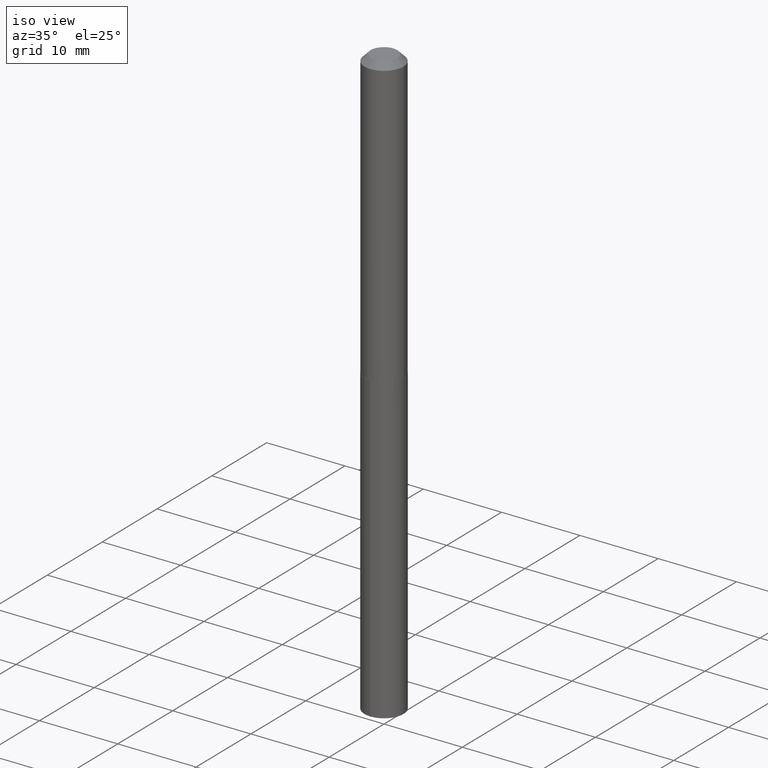
[diagram: clean part render]
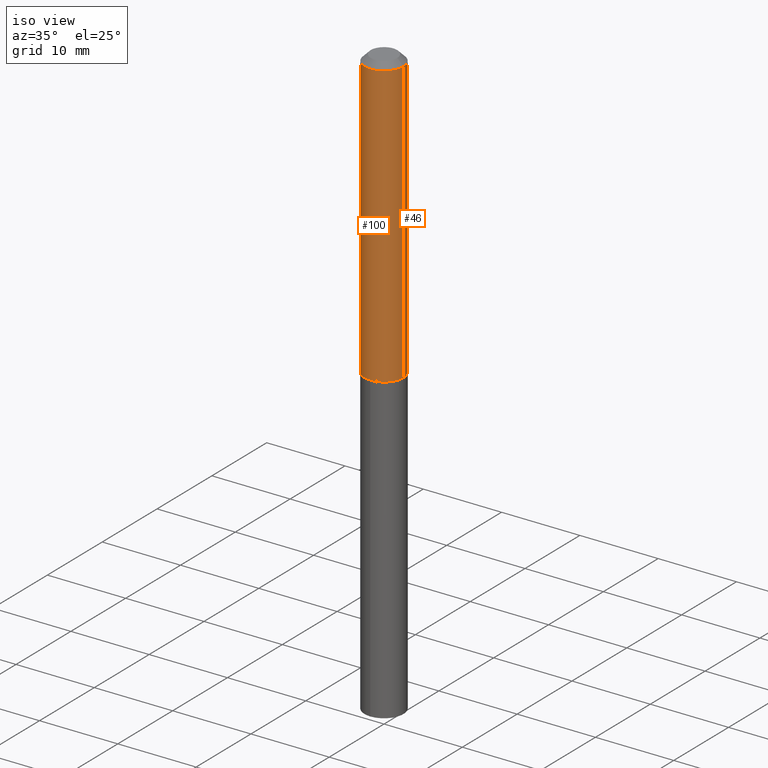
[diagram: same view with one multi-face feature highlighted, each face labeled with its STEP entity id]
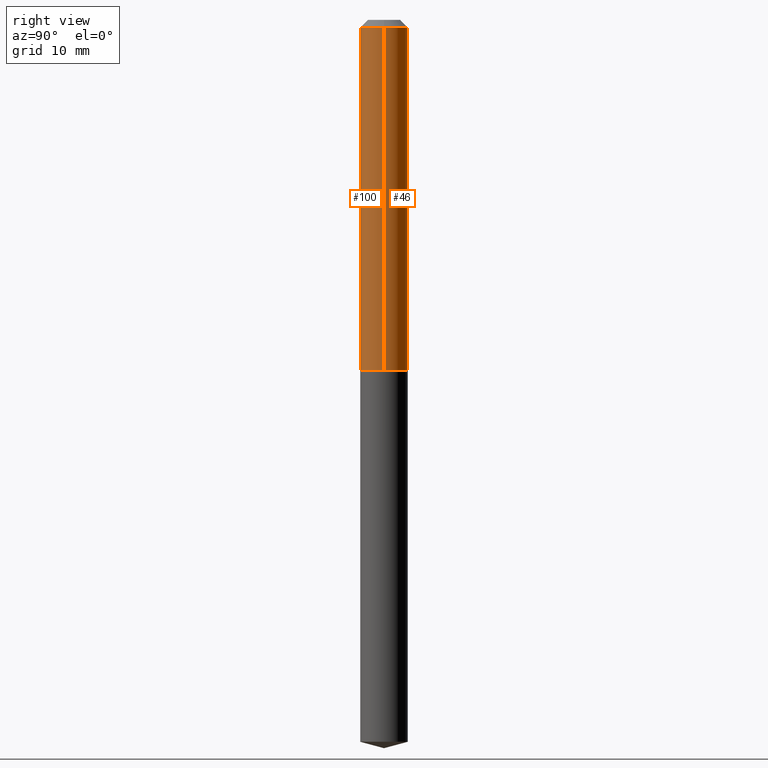
[diagram: same view with one multi-face feature highlighted, each face labeled with its STEP entity id]
A machine part, iso view. The highlighted faces form ONE feature: a constant-radius fillet chain: 2 tangent blend faces with common blend radius 2.4892 mm. The faces share edges in the B-rep.
A second angle (right view) of the same feature is appended — it is thin or edge-on in the first view.
Their STEP definitions:
[1] entity #100 (Cylinder):
#13 = EDGE_CURVE ( 'NONE', #385, #285, #299, .T. ) ;
#28 = CARTESIAN_POINT ( 'NONE',  ( 7.642090019328598283E-31, -1.091087918388489651E-16, -0.03125000000000019429 ) ) ;
#38 = CYLINDRICAL_SURFACE ( 'NONE', #94, 0.09800000000000008704 ) ;
#53 = CIRCLE ( 'NONE', #270, 0.09800000000000017031 ) ;
#75 = CARTESIAN_POINT ( 'NONE',  ( 3.534925159340615318E-29, -5.046936275297767188E-15, -1.445500000000000229 ) ) ;
#77 = VERTEX_POINT ( 'NONE', #245 ) ;
#88 = CARTESIAN_POINT ( 'NONE',  ( 0.09800000000000008704, -6.843303424132548397E-16, 4.778653240280021785E-30 ) ) ;
#90 = ORIENTED_EDGE ( 'NONE', *, *, #315, .F. ) ;
#94 = AXIS2_PLACEMENT_3D ( 'NONE', #280, #219, #279 ) ;
#99 = DIRECTION ( 'NONE',  ( -2.445468806185136597E-29, 3.491481338843145583E-15, 1.000000000000000000 ) ) ;
#100 = ADVANCED_FACE ( 'NONE', ( #127 ), #38, .T. ) ;
#109 = CARTESIAN_POINT ( 'NONE',  ( 0.09800000000000017031, -5.731266617711022619E-15, -1.445500000000000229 ) ) ;
#119 = DIRECTION ( 'NONE',  ( -2.445468806185136877E-29, 3.491481338843145188E-15, 1.000000000000000000 ) ) ;
#121 = ORIENTED_EDGE ( 'NONE', *, *, #13, .T. ) ;
#127 = FACE_OUTER_BOUND ( 'NONE', #362, .T. ) ;
#160 = EDGE_CURVE ( 'NONE', #77, #349, #339, .T. ) ;
#167 = DIRECTION ( 'NONE',  ( 1.000000000000000000, -6.982962677686266711E-15, 0.000000000000000000 ) ) ;
#172 = DIRECTION ( 'NONE',  ( 1.000000000000000000, -6.982962677686270655E-15, 0.000000000000000000 ) ) ;
#179 = VECTOR ( 'NONE', #193, 39.37007874015748143 ) ;
#180 = ORIENTED_EDGE ( 'NONE', *, *, #160, .F. ) ;
#181 = CIRCLE ( 'NONE', #310, 0.09800000000000000377 ) ;
#186 = VECTOR ( 'NONE', #119, 39.37007874015748143 ) ;
#193 = DIRECTION ( 'NONE',  ( -2.445468806185136877E-29, 3.491481338843145188E-15, 1.000000000000000000 ) ) ;
#218 = EDGE_CURVE ( 'NONE', #77, #385, #53, .T. ) ;
#219 = DIRECTION ( 'NONE',  ( -2.445468806185136597E-29, 3.491481338843145583E-15, 1.000000000000000000 ) ) ;
#227 = CARTESIAN_POINT ( 'NONE',  ( -0.09800000000000000377, -1.881690652523408160E-15, -0.03125000000000019429 ) ) ;
#245 = CARTESIAN_POINT ( 'NONE',  ( -0.09800000000000017031, -4.350604394252867598E-15, -1.445500000000000229 ) ) ;
#270 = AXIS2_PLACEMENT_3D ( 'NONE', #75, #284, #172 ) ;
#279 = DIRECTION ( 'NONE',  ( 1.000000000000000000, -6.982962677686267499E-15, 4.876176775795936353E-29 ) ) ;
#280 = CARTESIAN_POINT ( 'NONE',  ( 0.000000000000000000, 0.000000000000000000, 0.000000000000000000 ) ) ;
#284 = DIRECTION ( 'NONE',  ( -2.445468806185136597E-29, 3.491481338843145583E-15, 1.000000000000000000 ) ) ;
#285 = VERTEX_POINT ( 'NONE', #294 ) ;
#294 = CARTESIAN_POINT ( 'NONE',  ( 0.09800000000000000377, -7.934391342521031515E-16, -0.03125000000000019429 ) ) ;
#299 = LINE ( 'NONE', #88, #186 ) ;
#309 = CARTESIAN_POINT ( 'NONE',  ( -0.09800000000000008704, 6.963318810448988006E-16, -4.820556388449811965E-30 ) ) ;
#310 = AXIS2_PLACEMENT_3D ( 'NONE', #28, #99, #167 ) ;
#315 = EDGE_CURVE ( 'NONE', #349, #285, #181, .T. ) ;
#339 = LINE ( 'NONE', #309, #179 ) ;
#349 = VERTEX_POINT ( 'NONE', #227 ) ;
#362 = EDGE_LOOP ( 'NONE', ( #180, #369, #121, #90 ) ) ;
#369 = ORIENTED_EDGE ( 'NONE', *, *, #218, .T. ) ;
#385 = VERTEX_POINT ( 'NONE', #109 ) ;
[2] entity #46 (Cylinder):
#5 = EDGE_CURVE ( 'NONE', #385, #77, #192, .T. ) ;
#13 = EDGE_CURVE ( 'NONE', #385, #285, #299, .T. ) ;
#17 = ORIENTED_EDGE ( 'NONE', *, *, #160, .T. ) ;
#29 = FACE_OUTER_BOUND ( 'NONE', #233, .T. ) ;
#46 = ADVANCED_FACE ( 'NONE', ( #29 ), #151, .T. ) ;
#52 = ORIENTED_EDGE ( 'NONE', *, *, #5, .T. ) ;
#72 = EDGE_CURVE ( 'NONE', #285, #349, #340, .T. ) ;
#77 = VERTEX_POINT ( 'NONE', #245 ) ;
#88 = CARTESIAN_POINT ( 'NONE',  ( 0.09800000000000008704, -6.843303424132548397E-16, 4.778653240280021785E-30 ) ) ;
#97 = DIRECTION ( 'NONE',  ( 1.000000000000000000, -6.982962677686266711E-15, 0.000000000000000000 ) ) ;
#109 = CARTESIAN_POINT ( 'NONE',  ( 0.09800000000000017031, -5.731266617711022619E-15, -1.445500000000000229 ) ) ;
#118 = DIRECTION ( 'NONE',  ( 1.000000000000000000, -6.982962677686267499E-15, 4.876176775795936353E-29 ) ) ;
#119 = DIRECTION ( 'NONE',  ( -2.445468806185136877E-29, 3.491481338843145188E-15, 1.000000000000000000 ) ) ;
#135 = ORIENTED_EDGE ( 'NONE', *, *, #72, .F. ) ;
#151 = CYLINDRICAL_SURFACE ( 'NONE', #239, 0.09800000000000008704 ) ;
#160 = EDGE_CURVE ( 'NONE', #77, #349, #339, .T. ) ;
#179 = VECTOR ( 'NONE', #193, 39.37007874015748143 ) ;
#185 = CARTESIAN_POINT ( 'NONE',  ( 0.000000000000000000, 0.000000000000000000, 0.000000000000000000 ) ) ;
#186 = VECTOR ( 'NONE', #119, 39.37007874015748143 ) ;
#192 = CIRCLE ( 'NONE', #289, 0.09800000000000017031 ) ;
#193 = DIRECTION ( 'NONE',  ( -2.445468806185136877E-29, 3.491481338843145188E-15, 1.000000000000000000 ) ) ;
#213 = CARTESIAN_POINT ( 'NONE',  ( 7.642090019328598283E-31, -1.091087918388489651E-16, -0.03125000000000019429 ) ) ;
#227 = CARTESIAN_POINT ( 'NONE',  ( -0.09800000000000000377, -1.881690652523408160E-15, -0.03125000000000019429 ) ) ;
#233 = EDGE_LOOP ( 'NONE', ( #52, #17, #135, #365 ) ) ;
#239 = AXIS2_PLACEMENT_3D ( 'NONE', #185, #242, #118 ) ;
#242 = DIRECTION ( 'NONE',  ( -2.445468806185136597E-29, 3.491481338843145583E-15, 1.000000000000000000 ) ) ;
#243 = DIRECTION ( 'NONE',  ( 1.000000000000000000, -6.982962677686270655E-15, 0.000000000000000000 ) ) ;
#245 = CARTESIAN_POINT ( 'NONE',  ( -0.09800000000000017031, -4.350604394252867598E-15, -1.445500000000000229 ) ) ;
#277 = AXIS2_PLACEMENT_3D ( 'NONE', #213, #331, #97 ) ;
#285 = VERTEX_POINT ( 'NONE', #294 ) ;
#289 = AXIS2_PLACEMENT_3D ( 'NONE', #334, #295, #243 ) ;
#294 = CARTESIAN_POINT ( 'NONE',  ( 0.09800000000000000377, -7.934391342521031515E-16, -0.03125000000000019429 ) ) ;
#295 = DIRECTION ( 'NONE',  ( -2.445468806185136597E-29, 3.491481338843145583E-15, 1.000000000000000000 ) ) ;
#299 = LINE ( 'NONE', #88, #186 ) ;
#309 = CARTESIAN_POINT ( 'NONE',  ( -0.09800000000000008704, 6.963318810448988006E-16, -4.820556388449811965E-30 ) ) ;
#331 = DIRECTION ( 'NONE',  ( -2.445468806185136597E-29, 3.491481338843145583E-15, 1.000000000000000000 ) ) ;
#334 = CARTESIAN_POINT ( 'NONE',  ( 3.534925159340615318E-29, -5.046936275297767188E-15, -1.445500000000000229 ) ) ;
#339 = LINE ( 'NONE', #309, #179 ) ;
#340 = CIRCLE ( 'NONE', #277, 0.09800000000000000377 ) ;
#349 = VERTEX_POINT ( 'NONE', #227 ) ;
#365 = ORIENTED_EDGE ( 'NONE', *, *, #13, .F. ) ;
#385 = VERTEX_POINT ( 'NONE', #109 ) ;